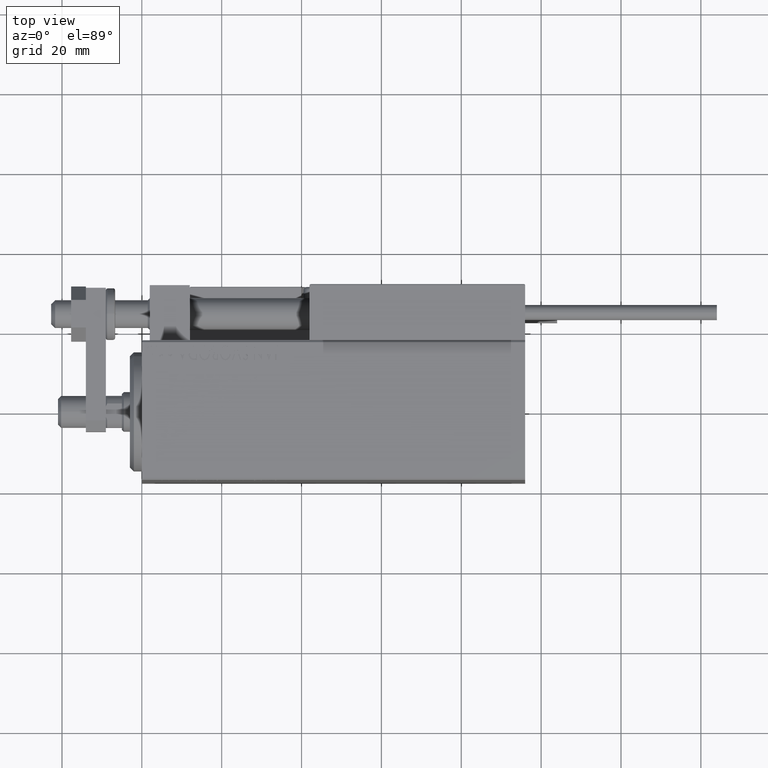
[diagram: clean part render]
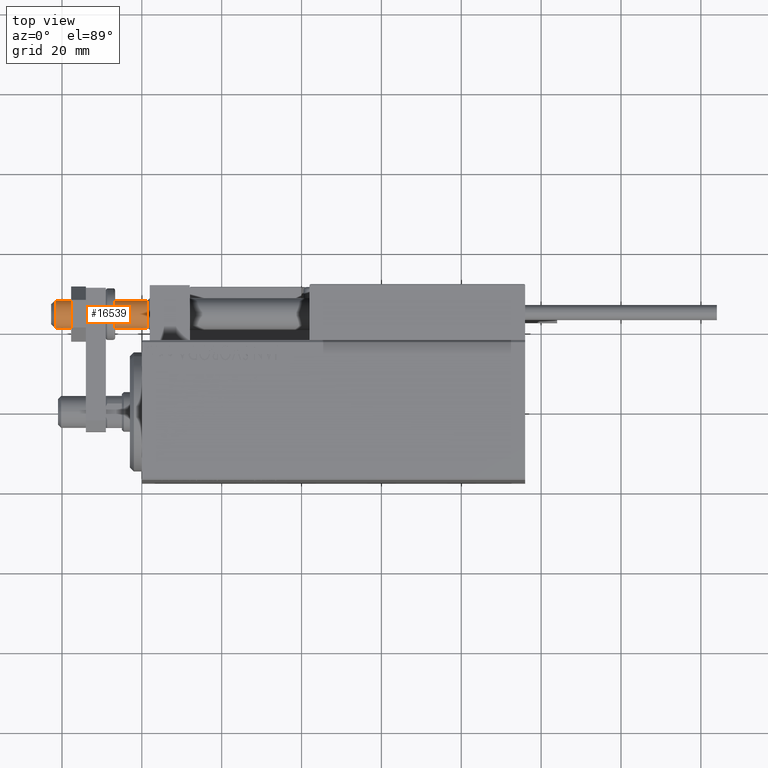
[diagram: same view with one face highlighted and labeled with its STEP entity id]
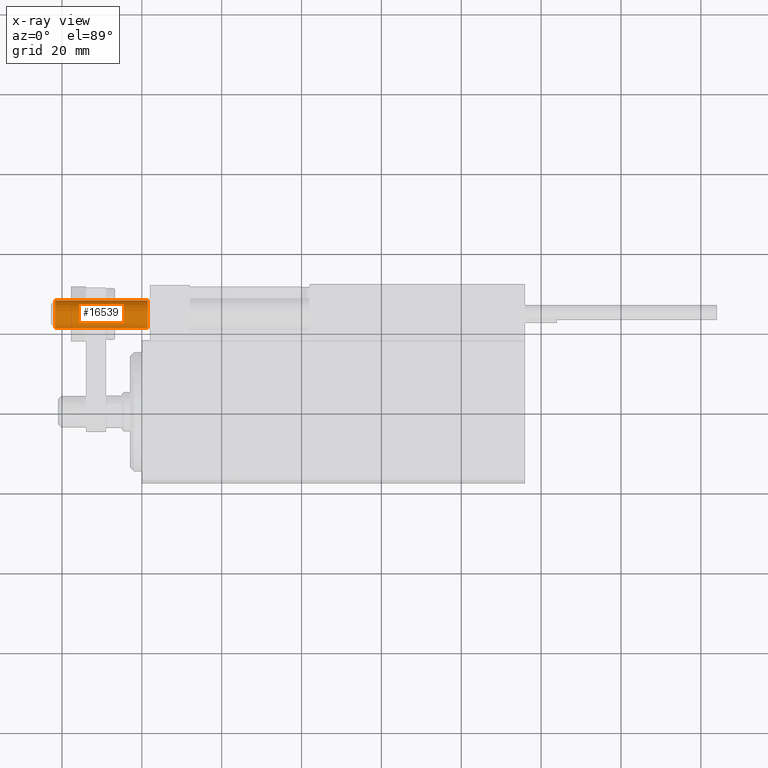
[diagram: x-ray of the same camera — body ghosted, the highlighted face saturated]
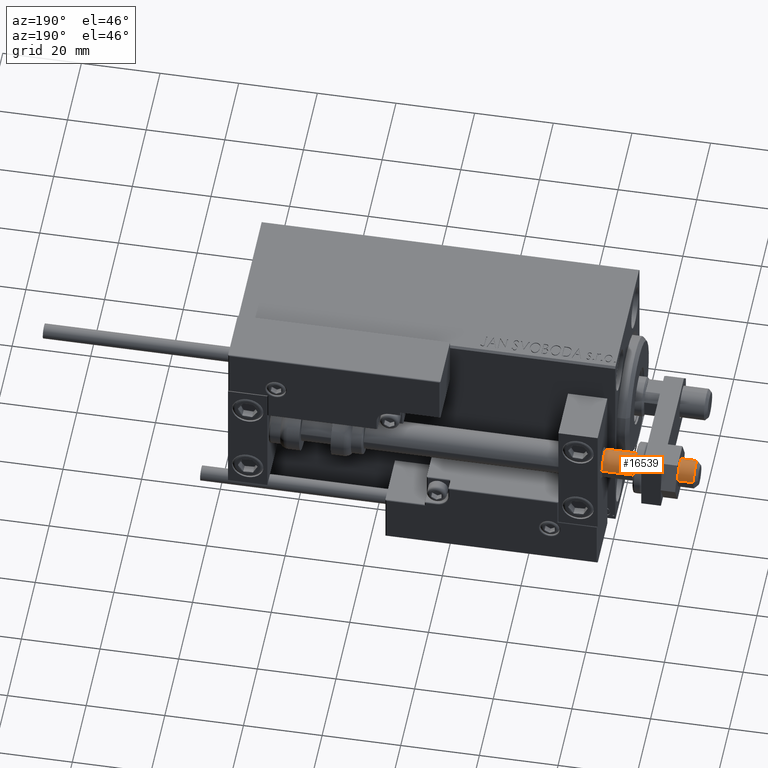
[diagram: same view with one face highlighted and labeled with its STEP entity id]
A machine part, top view. The second image highlights one B-rep face of the part: STEP entity #16539.
The next image is the same camera in x-ray: the body ghosted, the highlighted face saturated — about 0% of this face is hidden behind the body in this view.
A second angle (auxiliary view) of the same face is appended — the face is thin or edge-on in the first view.
In plain terms, the highlighted cylindrical surface (edge-blend (fillet) strip) has radius 3.5 mm, axis along (1, -0, -0).
Its self-contained STEP definition (entity closure, byte-faithful):
#1089 = AXIS2_PLACEMENT_3D ( 'NONE', #27136, #7836, #23516 ) ;
#1100 = CARTESIAN_POINT ( 'NONE',  ( -3.500000000000000000, 4.286263797015736595E-16, -22.69999999999999929 ) ) ;
#4993 = CARTESIAN_POINT ( 'NONE',  ( -3.500000000000000000, 4.286263797015736595E-16, -21.69999999999999929 ) ) ;
#5734 = LINE ( 'NONE', #36874, #25526 ) ;
#6954 = ORIENTED_EDGE ( 'NONE', *, *, #45138, .T. ) ;
#7836 = DIRECTION ( 'NONE',  ( 0.000000000000000000, 0.000000000000000000, -1.000000000000000000 ) ) ;
#8315 = VERTEX_POINT ( 'NONE', #17723 ) ;
#8884 = VERTEX_POINT ( 'NONE', #38364 ) ;
#11739 = VERTEX_POINT ( 'NONE', #4993 ) ;
#14154 = EDGE_CURVE ( 'NONE', #16168, #8884, #37229, .T. ) ;
#16168 = VERTEX_POINT ( 'NONE', #31315 ) ;
#16539 = ADVANCED_FACE ( 'NONE', ( #45618 ), #42012, .T. ) ;
#16804 = DIRECTION ( 'NONE',  ( -0.000000000000000000, -0.000000000000000000, 1.000000000000000000 ) ) ;
#17723 = CARTESIAN_POINT ( 'NONE',  ( 3.500000000000000000, 0.000000000000000000, -21.69999999999999929 ) ) ;
#19032 = ORIENTED_EDGE ( 'NONE', *, *, #14154, .T. ) ;
#22447 = DIRECTION ( 'NONE',  ( -0.000000000000000000, -0.000000000000000000, 1.000000000000000000 ) ) ;
#23516 = DIRECTION ( 'NONE',  ( 1.000000000000000000, 0.000000000000000000, 0.000000000000000000 ) ) ;
#23860 = AXIS2_PLACEMENT_3D ( 'NONE', #44901, #26622, #29988 ) ;
#25263 = ORIENTED_EDGE ( 'NONE', *, *, #26665, .T. ) ;
#25526 = VECTOR ( 'NONE', #40975, 1000.000000000000000 ) ;
#26622 = DIRECTION ( 'NONE',  ( 0.000000000000000000, 0.000000000000000000, 1.000000000000000000 ) ) ;
#26665 = EDGE_CURVE ( 'NONE', #8315, #11739, #28812, .T. ) ;
#27027 = EDGE_CURVE ( 'NONE', #8315, #8884, #5734, .T. ) ;
#27136 = CARTESIAN_POINT ( 'NONE',  ( 0.000000000000000000, 0.000000000000000000, 1.500000000000025535 ) ) ;
#28812 = CIRCLE ( 'NONE', #23860, 3.500000000000000000 ) ;
#29988 = DIRECTION ( 'NONE',  ( -1.000000000000000000, 0.000000000000000000, 0.000000000000000000 ) ) ;
#31315 = CARTESIAN_POINT ( 'NONE',  ( -3.500000000000000000, 4.286263797015736595E-16, 1.500000000000025535 ) ) ;
#34690 = VECTOR ( 'NONE', #16804, 1000.000000000000000 ) ;
#36347 = LINE ( 'NONE', #1100, #34690 ) ;
#36874 = CARTESIAN_POINT ( 'NONE',  ( 3.500000000000000000, 0.000000000000000000, -22.69999999999999929 ) ) ;
#37229 = CIRCLE ( 'NONE', #1089, 3.500000000000000000 ) ;
#38364 = CARTESIAN_POINT ( 'NONE',  ( 3.500000000000000000, 0.000000000000000000, 1.500000000000025535 ) ) ;
#40975 = DIRECTION ( 'NONE',  ( -0.000000000000000000, -0.000000000000000000, 1.000000000000000000 ) ) ;
#42012 = CYLINDRICAL_SURFACE ( 'NONE', #42212, 3.500000000000000000 ) ;
#42212 = AXIS2_PLACEMENT_3D ( 'NONE', #45353, #22447, #49458 ) ;
#44901 = CARTESIAN_POINT ( 'NONE',  ( 0.000000000000000000, 0.000000000000000000, -21.69999999999999929 ) ) ;
#45138 = EDGE_CURVE ( 'NONE', #11739, #16168, #36347, .T. ) ;
#45353 = CARTESIAN_POINT ( 'NONE',  ( 0.000000000000000000, 0.000000000000000000, -22.69999999999999929 ) ) ;
#45618 = FACE_OUTER_BOUND ( 'NONE', #45873, .T. ) ;
#45742 = ORIENTED_EDGE ( 'NONE', *, *, #27027, .F. ) ;
#45873 = EDGE_LOOP ( 'NONE', ( #25263, #6954, #19032, #45742 ) ) ;
#49458 = DIRECTION ( 'NONE',  ( 1.000000000000000000, 0.000000000000000000, 0.000000000000000000 ) ) ;